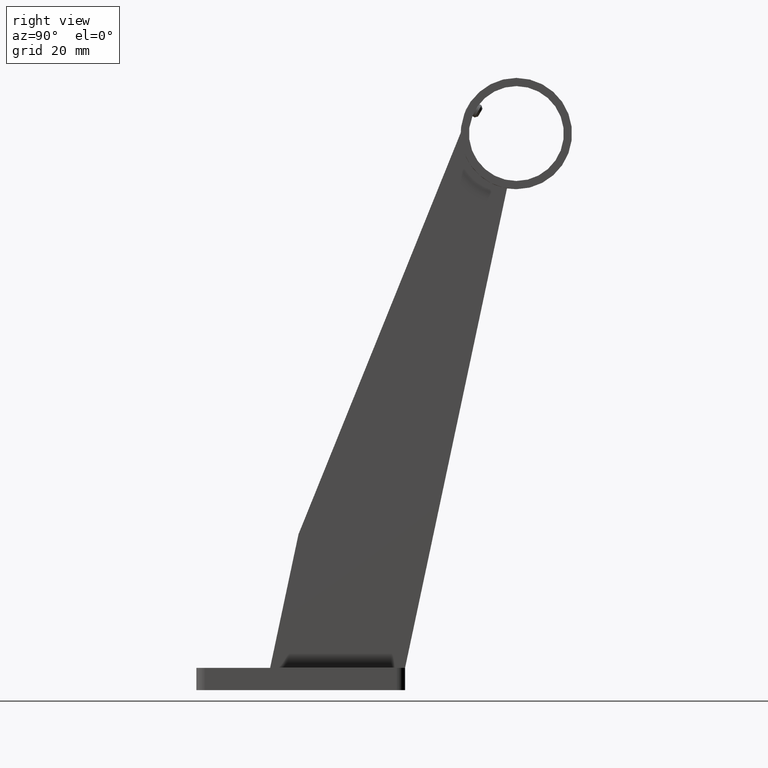
[diagram: clean part render]
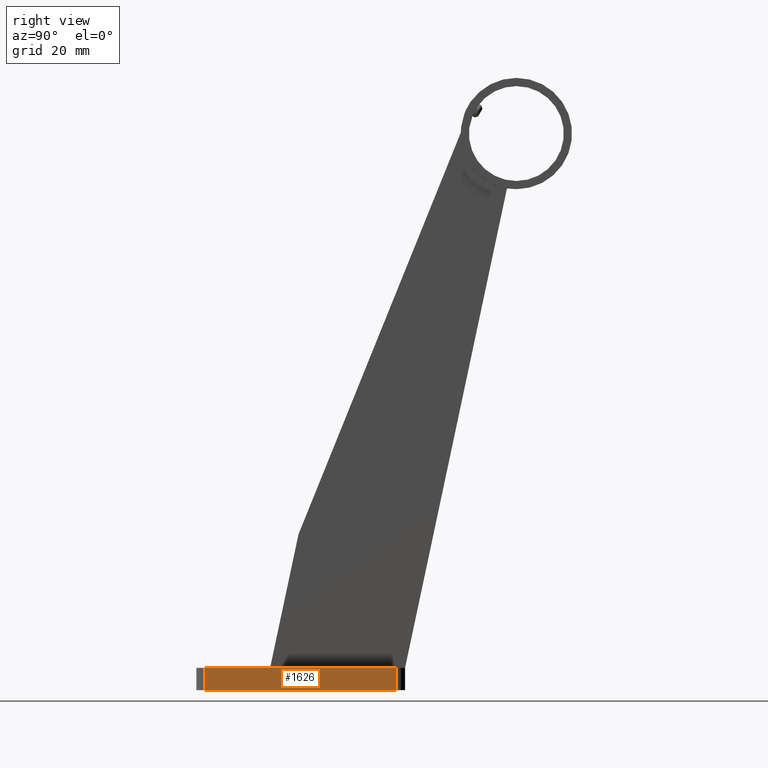
[diagram: same view with one face highlighted and labeled with its STEP entity id]
A machine part, right view. The second image highlights one B-rep face of the part: STEP entity #1626.
In plain terms, the highlighted planar face has unit normal (-1, -0, 0).
Its self-contained STEP definition (entity closure, byte-faithful):
#10 = CARTESIAN_POINT ( 'NONE',  ( 25.00000000000000000, 37.50000000000000000, 0.000000000000000000 ) ) ;
#237 = LINE ( 'NONE', #835, #11061 ) ;
#536 = EDGE_CURVE ( 'NONE', #6372, #6250, #11419, .T. ) ;
#835 = CARTESIAN_POINT ( 'NONE',  ( 25.00000000000000000, 37.50000000000000000, 8.000000000000000000 ) ) ;
#978 = DIRECTION ( 'NONE',  ( -4.625929269271485791E-17, 1.000000000000000000, -0.000000000000000000 ) ) ;
#1373 = FACE_OUTER_BOUND ( 'NONE', #7011, .T. ) ;
#1626 = ADVANCED_FACE ( 'NONE', ( #1373 ), #9955, .F. ) ;
#2087 = EDGE_CURVE ( 'NONE', #6250, #2965, #5473, .T. ) ;
#2706 = CARTESIAN_POINT ( 'NONE',  ( 25.00000000000000000, 34.49999999999999289, 0.000000000000000000 ) ) ;
#2965 = VERTEX_POINT ( 'NONE', #7558 ) ;
#2971 = VECTOR ( 'NONE', #6278, 1000.000000000000000 ) ;
#3217 = VECTOR ( 'NONE', #5923, 1000.000000000000000 ) ;
#4031 = AXIS2_PLACEMENT_3D ( 'NONE', #4303, #5265, #6062 ) ;
#4303 = CARTESIAN_POINT ( 'NONE',  ( 25.00000000000000000, 37.50000000000000000, 8.000000000000000000 ) ) ;
#4452 = VECTOR ( 'NONE', #978, 1000.000000000000000 ) ;
#4575 = CARTESIAN_POINT ( 'NONE',  ( 25.00000000000000355, -34.49999999999999289, 0.000000000000000000 ) ) ;
#4696 = VERTEX_POINT ( 'NONE', #9996 ) ;
#5154 = EDGE_CURVE ( 'NONE', #4696, #2965, #237, .T. ) ;
#5265 = DIRECTION ( 'NONE',  ( -1.000000000000000000, -4.625929269271485791E-17, 0.000000000000000000 ) ) ;
#5473 = LINE ( 'NONE', #8015, #2971 ) ;
#5497 = ORIENTED_EDGE ( 'NONE', *, *, #7795, .T. ) ;
#5923 = DIRECTION ( 'NONE',  ( 0.000000000000000000, 0.000000000000000000, -1.000000000000000000 ) ) ;
#6062 = DIRECTION ( 'NONE',  ( 4.625929269271485791E-17, -1.000000000000000000, 0.000000000000000000 ) ) ;
#6250 = VERTEX_POINT ( 'NONE', #2706 ) ;
#6278 = DIRECTION ( 'NONE',  ( -0.000000000000000000, -0.000000000000000000, 1.000000000000000000 ) ) ;
#6372 = VERTEX_POINT ( 'NONE', #4575 ) ;
#6438 = ORIENTED_EDGE ( 'NONE', *, *, #5154, .F. ) ;
#6523 = ORIENTED_EDGE ( 'NONE', *, *, #536, .T. ) ;
#7011 = EDGE_LOOP ( 'NONE', ( #6438, #5497, #6523, #11770 ) ) ;
#7392 = DIRECTION ( 'NONE',  ( -4.625929269271485791E-17, 1.000000000000000000, -0.000000000000000000 ) ) ;
#7558 = CARTESIAN_POINT ( 'NONE',  ( 25.00000000000000000, 34.49999999999999289, 8.000000000000000000 ) ) ;
#7795 = EDGE_CURVE ( 'NONE', #4696, #6372, #11503, .T. ) ;
#8015 = CARTESIAN_POINT ( 'NONE',  ( 25.00000000000000000, 34.49999999999999289, 8.000000000000000000 ) ) ;
#9955 = PLANE ( 'NONE',  #4031 ) ;
#9996 = CARTESIAN_POINT ( 'NONE',  ( 25.00000000000000355, -34.49999999999999289, 8.000000000000000000 ) ) ;
#11061 = VECTOR ( 'NONE', #7392, 1000.000000000000000 ) ;
#11419 = LINE ( 'NONE', #10, #4452 ) ;
#11503 = LINE ( 'NONE', #11577, #3217 ) ;
#11577 = CARTESIAN_POINT ( 'NONE',  ( 25.00000000000000355, -34.49999999999999289, 8.000000000000000000 ) ) ;
#11770 = ORIENTED_EDGE ( 'NONE', *, *, #2087, .T. ) ;